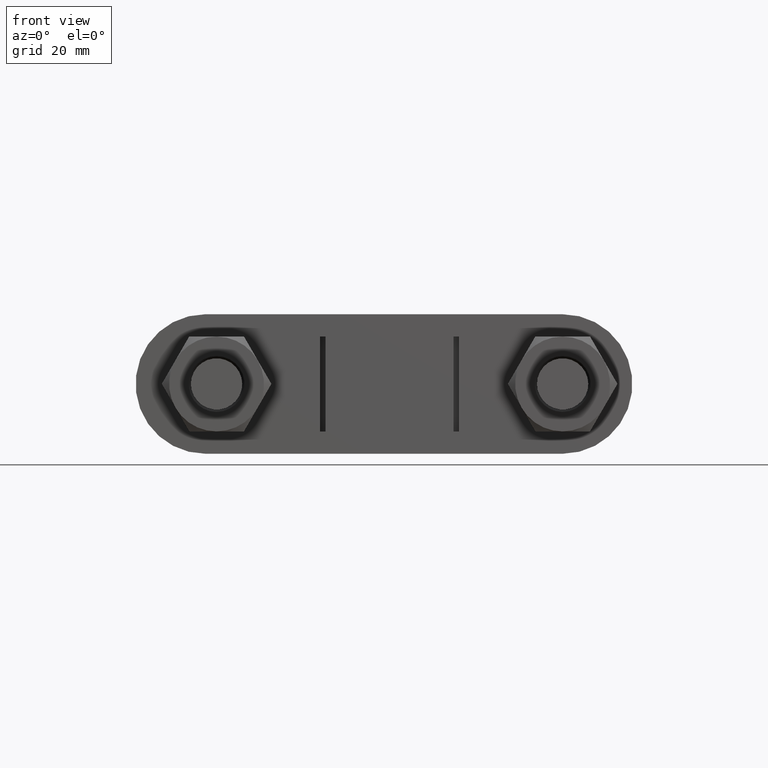
[diagram: clean part render]
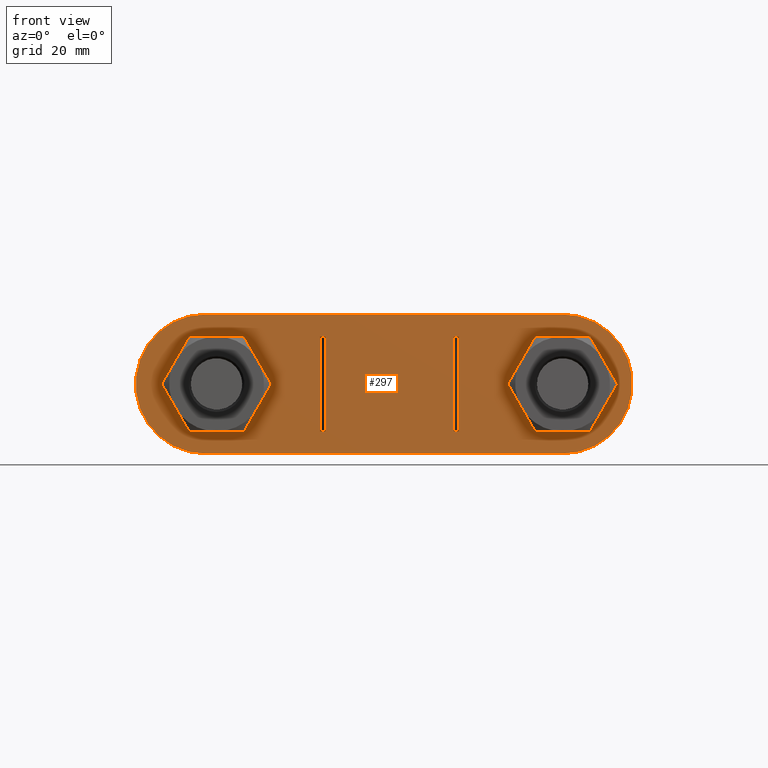
[diagram: same view with one face highlighted and labeled with its STEP entity id]
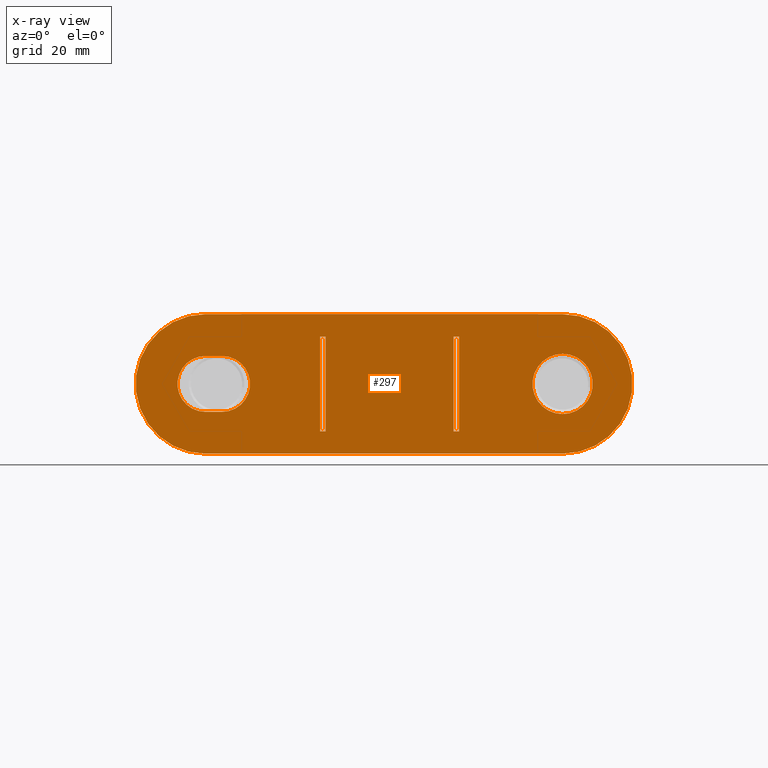
[diagram: x-ray of the same camera — body ghosted, the highlighted face saturated]
A machine part, front view. The second image highlights one B-rep face of the part: STEP entity #297.
The next image is the same camera in x-ray: the body ghosted, the highlighted face saturated — about 0% of this face is hidden behind the body in this view.
In plain terms, the highlighted planar face has unit normal (0, 1, 0).
Its self-contained STEP definition (entity closure, byte-faithful):
#297 = ADVANCED_FACE( '', ( #449, #450, #451, #452, #453 ), #454, .F. );
#449 = FACE_OUTER_BOUND( '', #1527, .T. );
#450 = FACE_BOUND( '', #1528, .T. );
#451 = FACE_BOUND( '', #1529, .T. );
#452 = FACE_BOUND( '', #1530, .T. );
#453 = FACE_BOUND( '', #1531, .T. );
#454 = PLANE( '', #1532 );
#1527 = EDGE_LOOP( '', ( #1902, #1903, #1904, #1905 ) );
#1528 = EDGE_LOOP( '', ( #1906, #1907, #1908, #1909 ) );
#1529 = EDGE_LOOP( '', ( #1910 ) );
#1530 = EDGE_LOOP( '', ( #1911, #1912, #1913, #1914 ) );
#1531 = EDGE_LOOP( '', ( #1915, #1916, #1917, #1918 ) );
#1532 = AXIS2_PLACEMENT_3D( '', #1919, #1920, #1921 );
#1902 = ORIENTED_EDGE( '', *, *, #2565, .F. );
#1903 = ORIENTED_EDGE( '', *, *, #2566, .F. );
#1904 = ORIENTED_EDGE( '', *, *, #2567, .F. );
#1905 = ORIENTED_EDGE( '', *, *, #2568, .F. );
#1906 = ORIENTED_EDGE( '', *, *, #2569, .F. );
#1907 = ORIENTED_EDGE( '', *, *, #2570, .T. );
#1908 = ORIENTED_EDGE( '', *, *, #2571, .T. );
#1909 = ORIENTED_EDGE( '', *, *, #2572, .F. );
#1910 = ORIENTED_EDGE( '', *, *, #2573, .T. );
#1911 = ORIENTED_EDGE( '', *, *, #2574, .F. );
#1912 = ORIENTED_EDGE( '', *, *, #2575, .F. );
#1913 = ORIENTED_EDGE( '', *, *, #2576, .F. );
#1914 = ORIENTED_EDGE( '', *, *, #2577, .F. );
#1915 = ORIENTED_EDGE( '', *, *, #2578, .T. );
#1916 = ORIENTED_EDGE( '', *, *, #2579, .T. );
#1917 = ORIENTED_EDGE( '', *, *, #2580, .F. );
#1918 = ORIENTED_EDGE( '', *, *, #2581, .F. );
#1919 = CARTESIAN_POINT( '', ( -33.0000000000000, 31.3000000000000, -2.74104934811529E-010 ) );
#1920 = DIRECTION( '', ( 1.29161057172372E-047, 1.00000000000000, 2.19103554241528E-016 ) );
#1921 = DIRECTION( '', ( 1.00000000000000, 0.000000000000000, -5.89497772500724E-032 ) );
#2565 = EDGE_CURVE( '', #2829, #2830, #2831, .T. );
#2566 = EDGE_CURVE( '', #2832, #2829, #2833, .T. );
#2567 = EDGE_CURVE( '', #2834, #2832, #2835, .T. );
#2568 = EDGE_CURVE( '', #2830, #2834, #2836, .T. );
#2569 = EDGE_CURVE( '', #2837, #2838, #2839, .T. );
#2570 = EDGE_CURVE( '', #2837, #2840, #2841, .T. );
#2571 = EDGE_CURVE( '', #2840, #2842, #2843, .T. );
#2572 = EDGE_CURVE( '', #2838, #2842, #2844, .T. );
#2573 = EDGE_CURVE( '', #2845, #2845, #2846, .T. );
#2574 = EDGE_CURVE( '', #2847, #2848, #2849, .T. );
#2575 = EDGE_CURVE( '', #2850, #2847, #2851, .T. );
#2576 = EDGE_CURVE( '', #2852, #2850, #2853, .T. );
#2577 = EDGE_CURVE( '', #2848, #2852, #2854, .T. );
#2578 = EDGE_CURVE( '', #2855, #2856, #2857, .T. );
#2579 = EDGE_CURVE( '', #2856, #2858, #2859, .T. );
#2580 = EDGE_CURVE( '', #2860, #2858, #2861, .T. );
#2581 = EDGE_CURVE( '', #2855, #2860, #2862, .T. );
#2829 = VERTEX_POINT( '', #3457 );
#2830 = VERTEX_POINT( '', #3458 );
#2831 = CIRCLE( '', #3459, 12.5000000000000 );
#2832 = VERTEX_POINT( '', #3460 );
#2833 = LINE( '', #3461, #3462 );
#2834 = VERTEX_POINT( '', #3463 );
#2835 = CIRCLE( '', #3464, 12.5000000000000 );
#2836 = LINE( '', #3465, #3466 );
#2837 = VERTEX_POINT( '', #3467 );
#2838 = VERTEX_POINT( '', #3468 );
#2839 = LINE( '', #3469, #3470 );
#2840 = VERTEX_POINT( '', #3471 );
#2841 = LINE( '', #3472, #3473 );
#2842 = VERTEX_POINT( '', #3474 );
#2843 = LINE( '', #3475, #3476 );
#2844 = LINE( '', #3477, #3478 );
#2845 = VERTEX_POINT( '', #3479 );
#2846 = CIRCLE( '', #3480, 5.40000000000000 );
#2847 = VERTEX_POINT( '', #3481 );
#2848 = VERTEX_POINT( '', #3482 );
#2849 = CIRCLE( '', #3483, 5.00000000000000 );
#2850 = VERTEX_POINT( '', #3484 );
#2851 = LINE( '', #3485, #3486 );
#2852 = VERTEX_POINT( '', #3487 );
#2853 = CIRCLE( '', #3488, 5.00000000000000 );
#2854 = LINE( '', #3489, #3490 );
#2855 = VERTEX_POINT( '', #3491 );
#2856 = VERTEX_POINT( '', #3492 );
#2857 = LINE( '', #3493, #3494 );
#2858 = VERTEX_POINT( '', #3495 );
#2859 = LINE( '', #3496, #3497 );
#2860 = VERTEX_POINT( '', #3498 );
#2861 = LINE( '', #3499, #3500 );
#2862 = LINE( '', #3501, #3502 );
#3457 = CARTESIAN_POINT( '', ( -32.9999999998962, 31.3000000000000, -12.5000000002741 ) );
#3458 = CARTESIAN_POINT( '', ( -33.0000000000519, 31.3000000000000, 12.4999999997259 ) );
#3459 = AXIS2_PLACEMENT_3D( '', #4059, #4060, #4061 );
#3460 = CARTESIAN_POINT( '', ( 31.0000000001038, 31.3000000000000, -12.4999999997425 ) );
#3461 = CARTESIAN_POINT( '', ( 31.0000000001039, 31.3000000000000, -12.4999999997425 ) );
#3462 = VECTOR( '', #4062, 1000.00000000000 );
#3463 = CARTESIAN_POINT( '', ( 30.9999999999481, 31.3000000000000, 12.4999999999917 ) );
#3464 = AXIS2_PLACEMENT_3D( '', #4063, #4064, #4065 );
#3465 = CARTESIAN_POINT( '', ( -33.0000000001038, 31.3000000000000, 12.4999999997259 ) );
#3466 = VECTOR( '', #4066, 1000.00000000000 );
#3467 = CARTESIAN_POINT( '', ( -12.4499999999294, 31.3000000000000, -8.50000000010341 ) );
#3468 = CARTESIAN_POINT( '', ( -11.4499999999294, 31.3000000000000, -8.50000000010341 ) );
#3469 = CARTESIAN_POINT( '', ( -12.4499999999294, 31.3000000000000, -8.50000000010341 ) );
#3470 = VECTOR( '', #4067, 1000.00000000000 );
#3471 = CARTESIAN_POINT( '', ( -12.4500000000706, 31.3000000000000, 8.49999999989659 ) );
#3472 = CARTESIAN_POINT( '', ( -12.4500000000000, 31.3000000000000, -1.03408344886904E-010 ) );
#3473 = VECTOR( '', #4068, 1000.00000000000 );
#3474 = CARTESIAN_POINT( '', ( -11.4499999999294, 31.3000000000000, 8.49999999989659 ) );
#3475 = CARTESIAN_POINT( '', ( -33.0000000000000, 31.3000000000000, 8.49999999989659 ) );
#3476 = VECTOR( '', #4069, 1000.00000000000 );
#3477 = CARTESIAN_POINT( '', ( -11.4499999999294, 31.3000000000000, -8.50000000009510 ) );
#3478 = VECTOR( '', #4070, 1000.00000000000 );
#3479 = CARTESIAN_POINT( '', ( 31.0000000000000, 31.3000000000000, 5.40000000025752 ) );
#3480 = AXIS2_PLACEMENT_3D( '', #4071, #4072, #4073 );
#3481 = CARTESIAN_POINT( '', ( -33.0000000000207, 31.3000000000000, 4.99999999973836 ) );
#3482 = CARTESIAN_POINT( '', ( -32.9999999999585, 31.3000000000000, -5.00000000027410 ) );
#3483 = AXIS2_PLACEMENT_3D( '', #4074, #4075, #4076 );
#3484 = CARTESIAN_POINT( '', ( -30.0000000000208, 31.3000000000000, 4.99999999975082 ) );
#3485 = CARTESIAN_POINT( '', ( -30.0000000000415, 31.3000000000000, 4.99999999975082 ) );
#3486 = VECTOR( '', #4077, 1000.00000000000 );
#3487 = CARTESIAN_POINT( '', ( -29.9999999999585, 31.3000000000000, -5.00000000024918 ) );
#3488 = AXIS2_PLACEMENT_3D( '', #4078, #4079, #4080 );
#3489 = CARTESIAN_POINT( '', ( -32.9999999999585, 31.3000000000000, -5.00000000027410 ) );
#3490 = VECTOR( '', #4081, 1000.00000000000 );
#3491 = CARTESIAN_POINT( '', ( 12.4500000000706, 31.3000000000000, -8.49999999989657 ) );
#3492 = CARTESIAN_POINT( '', ( 11.4500000000706, 31.3000000000000, -8.49999999989657 ) );
#3493 = CARTESIAN_POINT( '', ( -33.0000000000000, 31.3000000000000, -8.49999999989657 ) );
#3494 = VECTOR( '', #4082, 1000.00000000000 );
#3495 = CARTESIAN_POINT( '', ( 11.4499999999294, 31.3000000000000, 8.50000000010343 ) );
#3496 = CARTESIAN_POINT( '', ( 11.4500000000000, 31.3000000000000, 9.51289531074388E-011 ) );
#3497 = VECTOR( '', #4083, 1000.00000000000 );
#3498 = CARTESIAN_POINT( '', ( 12.4500000000706, 31.3000000000000, 8.50000000010343 ) );
#3499 = CARTESIAN_POINT( '', ( 12.4499999999294, 31.3000000000000, 8.50000000010343 ) );
#3500 = VECTOR( '', #4084, 1000.00000000000 );
#3501 = CARTESIAN_POINT( '', ( 12.4500000000706, 31.3000000000000, -8.49999999989657 ) );
#3502 = VECTOR( '', #4085, 1000.00000000000 );
#4059 = CARTESIAN_POINT( '', ( -33.0000000000000, 31.3000000000000, -2.74104934811529E-010 ) );
#4060 = DIRECTION( '', ( 5.89497772500724E-032, 1.00000000000000, 2.19103554241528E-016 ) );
#4061 = DIRECTION( '', ( 1.45322420762716E-063, -2.19103554241528E-016, 1.00000000000000 ) );
#4062 = DIRECTION( '', ( -1.00000000000000, 1.82005659535296E-027, -8.30656377015886E-012 ) );
#4063 = CARTESIAN_POINT( '', ( 31.0000000000000, 31.3000000000000, 2.57518615925590E-010 ) );
#4064 = DIRECTION( '', ( 5.89497772500724E-032, 1.00000000000000, 2.19103554241528E-016 ) );
#4065 = DIRECTION( '', ( 1.45322420762716E-063, -2.19103554241528E-016, 1.00000000000000 ) );
#4066 = DIRECTION( '', ( 1.00000000000000, -5.89497772496737E-032, -1.81999707241254E-027 ) );
#4067 = DIRECTION( '', ( 1.00000000000000, -5.89497772500779E-032, 2.50210040014162E-029 ) );
#4068 = DIRECTION( '', ( -8.30640340265816E-012, -2.19103554241528E-016, 1.00000000000000 ) );
#4069 = DIRECTION( '', ( 1.00000000000000, -5.89497772500779E-032, 2.50210040014162E-029 ) );
#4070 = DIRECTION( '', ( 2.74336732638720E-027, -2.19103554241528E-016, 1.00000000000000 ) );
#4071 = CARTESIAN_POINT( '', ( 31.0000000000000, 31.3000000000000, 2.57516881202114E-010 ) );
#4072 = DIRECTION( '', ( 5.89497772500724E-032, 1.00000000000000, 2.19103554241528E-016 ) );
#4073 = DIRECTION( '', ( -1.45322420762716E-063, -2.19103554241528E-016, 1.00000000000000 ) );
#4074 = CARTESIAN_POINT( '', ( -33.0000000000000, 31.3000000000000, -2.74103200088053E-010 ) );
#4075 = DIRECTION( '', ( -5.89497772500724E-032, -1.00000000000000, -2.19103554241528E-016 ) );
#4076 = DIRECTION( '', ( -1.45322420762716E-063, -2.19103554241528E-016, 1.00000000000000 ) );
#4077 = DIRECTION( '', ( -1.00000000000000, 5.89497772496737E-032, 1.81999707241254E-027 ) );
#4078 = CARTESIAN_POINT( '', ( -30.0000000000000, 31.3000000000000, -2.49183508777576E-010 ) );
#4079 = DIRECTION( '', ( -5.89497772500724E-032, -1.00000000000000, -2.19103554241528E-016 ) );
#4080 = DIRECTION( '', ( -1.45322420762716E-063, -2.19103554241528E-016, 1.00000000000000 ) );
#4081 = DIRECTION( '', ( 1.00000000000000, -1.82005659535296E-027, 8.30656377015886E-012 ) );
#4082 = DIRECTION( '', ( -1.00000000000000, 5.89497772500779E-032, -2.50210040014162E-029 ) );
#4083 = DIRECTION( '', ( -8.30672413765957E-012, -2.19103554241528E-016, 1.00000000000000 ) );
#4084 = DIRECTION( '', ( -1.00000000000000, 5.89497772500779E-032, -2.50210040014162E-029 ) );
#4085 = DIRECTION( '', ( 2.74347325872917E-027, -2.19103554241528E-016, 1.00000000000000 ) );